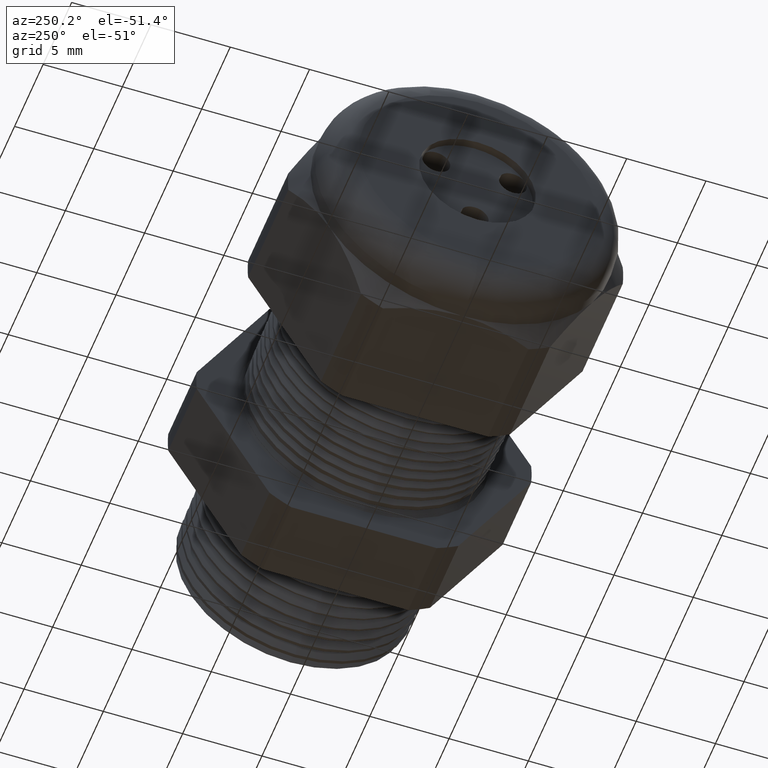
[diagram: clean part render]
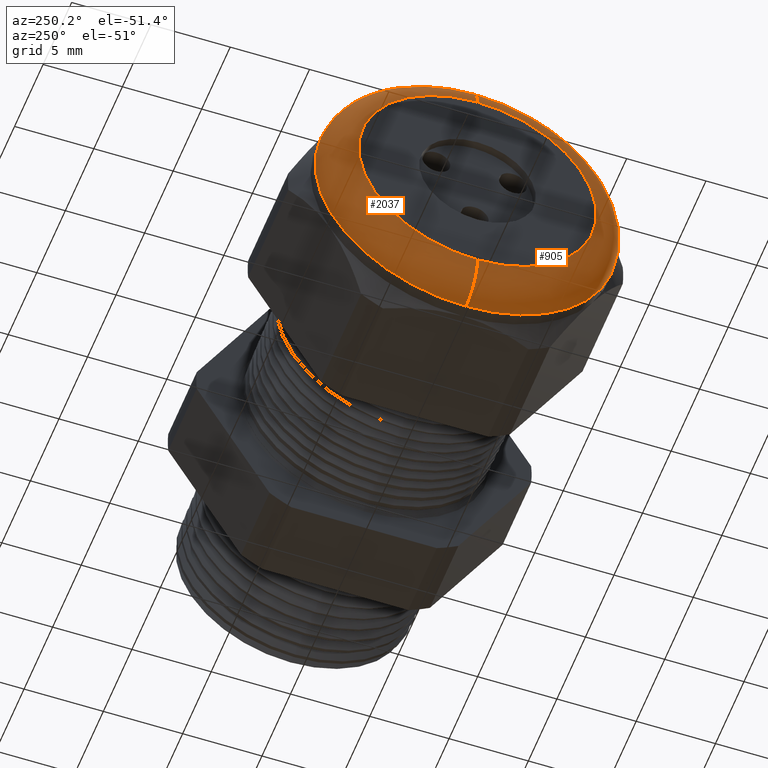
[diagram: same view with one multi-face feature highlighted, each face labeled with its STEP entity id]
A machine part, auxiliary view. The highlighted faces form ONE feature: a constant-radius fillet chain: 2 tangent blend faces with common blend radius 2.032 mm. The faces share edges in the B-rep.
Their STEP definitions:
[1] entity #2037 (Torus):
#1813 = DIRECTION ( 'NONE',  ( -1.000000000000000000, 0.0000000000000000000, 0.0000000000000000000 ) ) ;
#2016 = ORIENTED_EDGE ( 'NONE', *, *, #2022, .F. ) ;
#2017 = VERTEX_POINT ( 'NONE', #4644 ) ;
#2018 = ORIENTED_EDGE ( 'NONE', *, *, #2027, .F. ) ;
#2022 = EDGE_CURVE ( 'NONE', #2048, #2032, #4643, .T. ) ;
#2027 = EDGE_CURVE ( 'NONE', #2032, #2017, #4629, .T. ) ;
#2032 = VERTEX_POINT ( 'NONE', #4676 ) ;
#2037 = ADVANCED_FACE ( 'NONE', ( #4659 ), #4657, .T. ) ;
#2038 = ORIENTED_EDGE ( 'NONE', *, *, #2052, .F. ) ;
#2044 = EDGE_CURVE ( 'NONE', #2048, #2046, #4710, .T. ) ;
#2046 = VERTEX_POINT ( 'NONE', #4700 ) ;
#2048 = VERTEX_POINT ( 'NONE', #4698 ) ;
#2051 = ORIENTED_EDGE ( 'NONE', *, *, #2044, .T. ) ;
#2052 = EDGE_CURVE ( 'NONE', #2017, #2046, #4696, .T. ) ;
#2053 = EDGE_LOOP ( 'NONE', ( #2016, #2051, #2038, #2018 ) ) ;
#4410 = AXIS2_PLACEMENT_3D ( 'NONE', #4658, #1813, #4717 ) ;
#4628 = AXIS2_PLACEMENT_3D ( 'NONE', #4689, #4688, #4687 ) ;
#4629 = CIRCLE ( 'NONE', #4628, 0.08000000000000000200 ) ;
#4639 = DIRECTION ( 'NONE',  ( 0.0000000000000000000, 0.0000000000000000000, 1.000000000000000000 ) ) ;
#4640 = DIRECTION ( 'NONE',  ( 1.000000000000000000, 0.0000000000000000000, 0.0000000000000000000 ) ) ;
#4641 = CARTESIAN_POINT ( 'NONE',  ( -1.210000000000000000, 0.0000000000000000000, 0.0000000000000000000 ) ) ;
#4642 = AXIS2_PLACEMENT_3D ( 'NONE', #4641, #4640, #4639 ) ;
#4643 = CIRCLE ( 'NONE', #4642, 0.3750000000000000600 ) ;
#4644 = CARTESIAN_POINT ( 'NONE',  ( -1.289999999999999800, 0.0000000000000000000, 0.2950000000000000400 ) ) ;
#4657 = TOROIDAL_SURFACE ( 'NONE', #4410, 0.2950000000000000400, 0.08000000000000000200 ) ;
#4658 = CARTESIAN_POINT ( 'NONE',  ( -1.210000000000000000, 0.0000000000000000000, 0.0000000000000000000 ) ) ;
#4659 = FACE_OUTER_BOUND ( 'NONE', #2053, .T. ) ;
#4676 = CARTESIAN_POINT ( 'NONE',  ( -1.210000000000000000, 4.592425496802575500E-017, 0.3750000000000000600 ) ) ;
#4687 = DIRECTION ( 'NONE',  ( 0.0000000000000000000, 0.0000000000000000000, -1.000000000000000000 ) ) ;
#4688 = DIRECTION ( 'NONE',  ( 0.0000000000000000000, -1.000000000000000000, 0.0000000000000000000 ) ) ;
#4689 = CARTESIAN_POINT ( 'NONE',  ( -1.210000000000000000, 0.0000000000000000000, 0.2950000000000000400 ) ) ;
#4692 = DIRECTION ( 'NONE',  ( 0.0000000000000000000, 0.0000000000000000000, 1.000000000000000000 ) ) ;
#4693 = DIRECTION ( 'NONE',  ( -1.000000000000000000, 0.0000000000000000000, 0.0000000000000000000 ) ) ;
#4694 = CARTESIAN_POINT ( 'NONE',  ( -1.289999999999999800, 0.0000000000000000000, 0.0000000000000000000 ) ) ;
#4695 = AXIS2_PLACEMENT_3D ( 'NONE', #4694, #4693, #4692 ) ;
#4696 = CIRCLE ( 'NONE', #4695, 0.2950000000000000400 ) ;
#4698 = CARTESIAN_POINT ( 'NONE',  ( -1.210000000000000000, 0.0000000000000000000, -0.3750000000000000600 ) ) ;
#4700 = CARTESIAN_POINT ( 'NONE',  ( -1.289999999999999800, 4.102566777143634000E-017, -0.2950000000000000400 ) ) ;
#4706 = DIRECTION ( 'NONE',  ( 0.0000000000000000000, -1.224646799147353500E-016, 1.000000000000000000 ) ) ;
#4707 = DIRECTION ( 'NONE',  ( 0.0000000000000000000, 1.000000000000000000, 1.224646799147353200E-016 ) ) ;
#4708 = CARTESIAN_POINT ( 'NONE',  ( -1.210000000000000000, 3.612708057484692600E-017, -0.2950000000000000400 ) ) ;
#4709 = AXIS2_PLACEMENT_3D ( 'NONE', #4708, #4707, #4706 ) ;
#4710 = CIRCLE ( 'NONE', #4709, 0.08000000000000000200 ) ;
#4717 = DIRECTION ( 'NONE',  ( 0.0000000000000000000, 0.0000000000000000000, 1.000000000000000000 ) ) ;
[2] entity #905 (Torus):
#787 = EDGE_CURVE ( 'NONE', #2046, #2017, #3293, .T. ) ;
#799 = EDGE_CURVE ( 'NONE', #2032, #2048, #3334, .T. ) ;
#905 = ADVANCED_FACE ( 'NONE', ( #3498 ), #3497, .T. ) ;
#906 = EDGE_LOOP ( 'NONE', ( #907, #961, #962, #963 ) ) ;
#907 = ORIENTED_EDGE ( 'NONE', *, *, #2044, .F. ) ;
#961 = ORIENTED_EDGE ( 'NONE', *, *, #799, .F. ) ;
#962 = ORIENTED_EDGE ( 'NONE', *, *, #2027, .T. ) ;
#963 = ORIENTED_EDGE ( 'NONE', *, *, #787, .F. ) ;
#2017 = VERTEX_POINT ( 'NONE', #4644 ) ;
#2027 = EDGE_CURVE ( 'NONE', #2032, #2017, #4629, .T. ) ;
#2032 = VERTEX_POINT ( 'NONE', #4676 ) ;
#2044 = EDGE_CURVE ( 'NONE', #2048, #2046, #4710, .T. ) ;
#2046 = VERTEX_POINT ( 'NONE', #4700 ) ;
#2048 = VERTEX_POINT ( 'NONE', #4698 ) ;
#3289 = DIRECTION ( 'NONE',  ( 0.0000000000000000000, 0.0000000000000000000, 1.000000000000000000 ) ) ;
#3290 = DIRECTION ( 'NONE',  ( -1.000000000000000000, 0.0000000000000000000, 0.0000000000000000000 ) ) ;
#3291 = CARTESIAN_POINT ( 'NONE',  ( -1.289999999999999800, 0.0000000000000000000, 0.0000000000000000000 ) ) ;
#3292 = AXIS2_PLACEMENT_3D ( 'NONE', #3291, #3290, #3289 ) ;
#3293 = CIRCLE ( 'NONE', #3292, 0.2950000000000000400 ) ;
#3330 = DIRECTION ( 'NONE',  ( 0.0000000000000000000, 0.0000000000000000000, 1.000000000000000000 ) ) ;
#3331 = DIRECTION ( 'NONE',  ( 1.000000000000000000, 0.0000000000000000000, 0.0000000000000000000 ) ) ;
#3332 = CARTESIAN_POINT ( 'NONE',  ( -1.210000000000000000, 0.0000000000000000000, 0.0000000000000000000 ) ) ;
#3333 = AXIS2_PLACEMENT_3D ( 'NONE', #3332, #3331, #3330 ) ;
#3334 = CIRCLE ( 'NONE', #3333, 0.3750000000000000600 ) ;
#3493 = DIRECTION ( 'NONE',  ( 0.0000000000000000000, 0.0000000000000000000, 1.000000000000000000 ) ) ;
#3494 = DIRECTION ( 'NONE',  ( -1.000000000000000000, 0.0000000000000000000, 0.0000000000000000000 ) ) ;
#3495 = CARTESIAN_POINT ( 'NONE',  ( -1.210000000000000000, 0.0000000000000000000, 0.0000000000000000000 ) ) ;
#3496 = AXIS2_PLACEMENT_3D ( 'NONE', #3495, #3494, #3493 ) ;
#3497 = TOROIDAL_SURFACE ( 'NONE', #3496, 0.2950000000000000400, 0.08000000000000000200 ) ;
#3498 = FACE_OUTER_BOUND ( 'NONE', #906, .T. ) ;
#4628 = AXIS2_PLACEMENT_3D ( 'NONE', #4689, #4688, #4687 ) ;
#4629 = CIRCLE ( 'NONE', #4628, 0.08000000000000000200 ) ;
#4644 = CARTESIAN_POINT ( 'NONE',  ( -1.289999999999999800, 0.0000000000000000000, 0.2950000000000000400 ) ) ;
#4676 = CARTESIAN_POINT ( 'NONE',  ( -1.210000000000000000, 4.592425496802575500E-017, 0.3750000000000000600 ) ) ;
#4687 = DIRECTION ( 'NONE',  ( 0.0000000000000000000, 0.0000000000000000000, -1.000000000000000000 ) ) ;
#4688 = DIRECTION ( 'NONE',  ( 0.0000000000000000000, -1.000000000000000000, 0.0000000000000000000 ) ) ;
#4689 = CARTESIAN_POINT ( 'NONE',  ( -1.210000000000000000, 0.0000000000000000000, 0.2950000000000000400 ) ) ;
#4698 = CARTESIAN_POINT ( 'NONE',  ( -1.210000000000000000, 0.0000000000000000000, -0.3750000000000000600 ) ) ;
#4700 = CARTESIAN_POINT ( 'NONE',  ( -1.289999999999999800, 4.102566777143634000E-017, -0.2950000000000000400 ) ) ;
#4706 = DIRECTION ( 'NONE',  ( 0.0000000000000000000, -1.224646799147353500E-016, 1.000000000000000000 ) ) ;
#4707 = DIRECTION ( 'NONE',  ( 0.0000000000000000000, 1.000000000000000000, 1.224646799147353200E-016 ) ) ;
#4708 = CARTESIAN_POINT ( 'NONE',  ( -1.210000000000000000, 3.612708057484692600E-017, -0.2950000000000000400 ) ) ;
#4709 = AXIS2_PLACEMENT_3D ( 'NONE', #4708, #4707, #4706 ) ;
#4710 = CIRCLE ( 'NONE', #4709, 0.08000000000000000200 ) ;